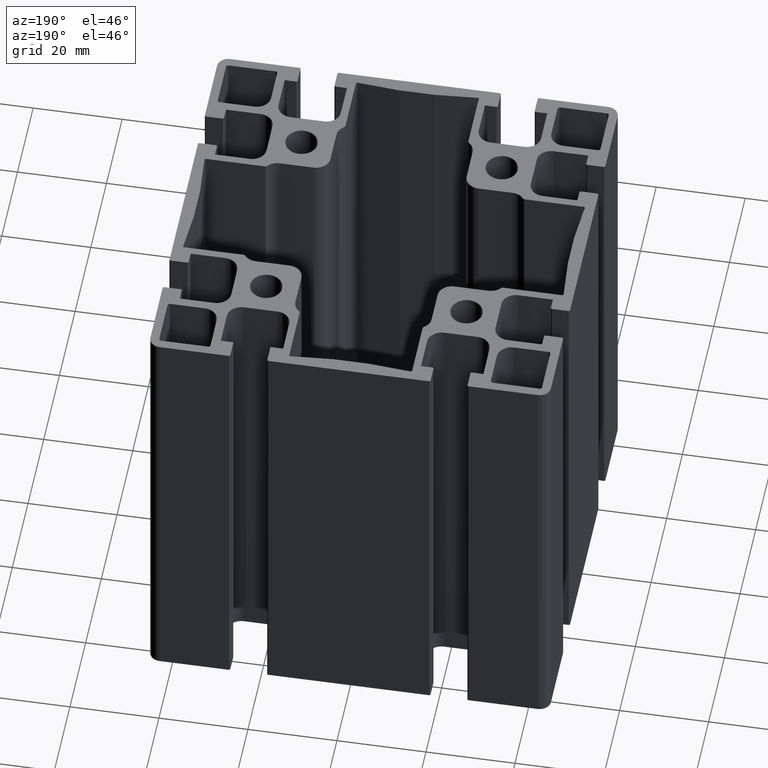
[diagram: clean part render]
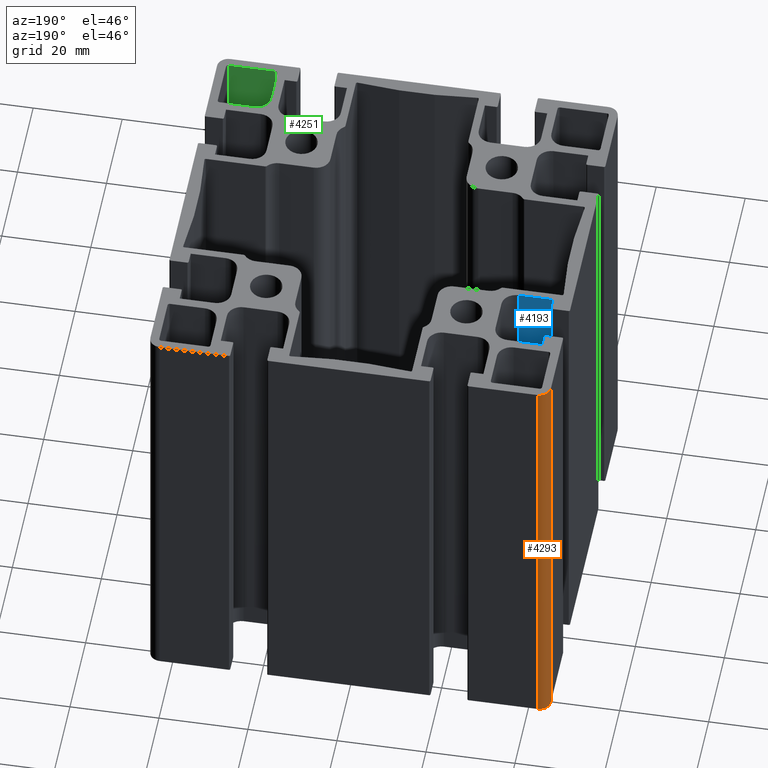
[diagram: same view with three faces highlighted in distinct colors, each labeled with its STEP entity id]
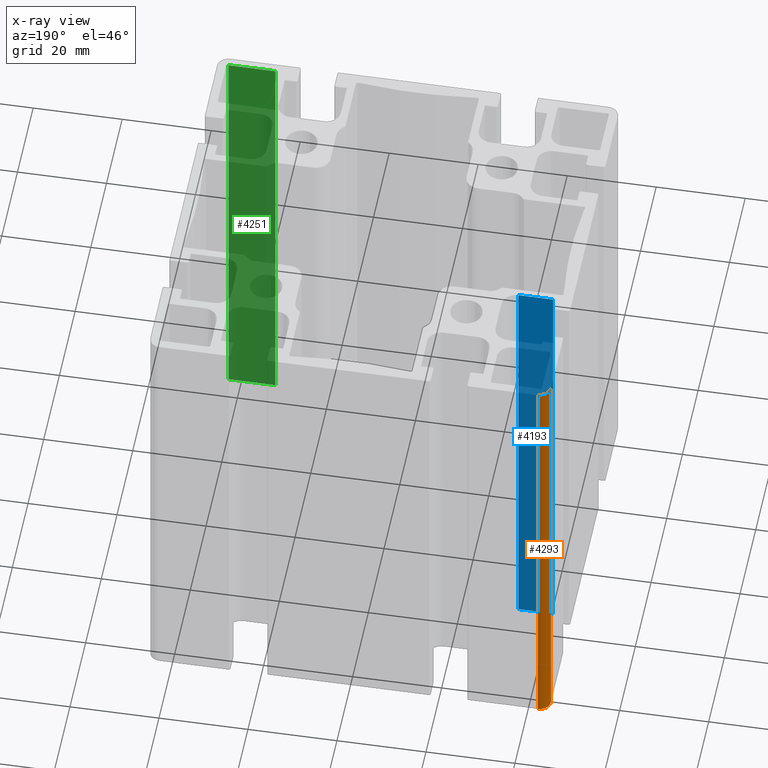
[diagram: x-ray of the same camera — body ghosted, the three highlighted faces saturated]
A machine part, auxiliary view with three faces highlighted in distinct colors.
The next image is the same camera in x-ray (body ghosted, the three faces saturated) — at least one of them is partly hidden behind the body in this view.
Their STEP definitions:

[orange] entity #4293 — the highlighted cylindrical surface (edge-blend (fillet) strip) has radius 2.5 mm, axis along (0, 0, 1).
#230=CIRCLE('',#4700,2.50000000000001);
#234=CIRCLE('',#4707,2.50000000000001);
#334=CYLINDRICAL_SURFACE('',#4706,2.50000000000001);
#545=FACE_OUTER_BOUND('',#772,.T.);
#772=EDGE_LOOP('',(#3739,#3740,#3741,#3742));
#1196=LINE('',#7193,#1628);
#1214=LINE('',#7233,#1646);
#1628=VECTOR('',#5910,100.);
#1646=VECTOR('',#5954,100.);
#2063=VERTEX_POINT('',#7190);
#2064=VERTEX_POINT('',#7192);
#2070=VERTEX_POINT('',#7220);
#2073=VERTEX_POINT('',#7232);
#2676=EDGE_CURVE('',#2063,#2064,#1196,.T.);
#2692=EDGE_CURVE('',#2070,#2064,#230,.T.);
#2699=EDGE_CURVE('',#2073,#2070,#1214,.T.);
#2701=EDGE_CURVE('',#2073,#2063,#234,.T.);
#3739=ORIENTED_EDGE('',*,*,#2692,.T.);
#3740=ORIENTED_EDGE('',*,*,#2676,.F.);
#3741=ORIENTED_EDGE('',*,*,#2701,.F.);
#3742=ORIENTED_EDGE('',*,*,#2699,.T.);
#4293=ADVANCED_FACE('',(#545),#334,.T.);
#4700=AXIS2_PLACEMENT_3D('',#7221,#5939,#5940);
#4706=AXIS2_PLACEMENT_3D('',#7235,#5956,#5957);
#4707=AXIS2_PLACEMENT_3D('',#7236,#5958,#5959);
#5910=DIRECTION('',(0.,0.,1.));
#5939=DIRECTION('center_axis',(0.,0.,-1.));
#5940=DIRECTION('ref_axis',(0.,-1.,0.));
#5954=DIRECTION('',(0.,0.,1.));
#5956=DIRECTION('center_axis',(0.,0.,1.));
#5957=DIRECTION('ref_axis',(0.,-1.,0.));
#5958=DIRECTION('center_axis',(0.,0.,-1.));
#5959=DIRECTION('ref_axis',(0.,-1.,0.));
#7190=CARTESIAN_POINT('',(-42.5,45.,0.));
#7192=CARTESIAN_POINT('',(-42.5,45.,100.));
#7193=CARTESIAN_POINT('',(-42.5,45.,0.));
#7220=CARTESIAN_POINT('',(-45.,42.5,100.));
#7221=CARTESIAN_POINT('Origin',(-42.5,42.5,100.));
#7232=CARTESIAN_POINT('',(-45.,42.5,0.));
#7233=CARTESIAN_POINT('',(-45.,42.5,0.));
#7235=CARTESIAN_POINT('Origin',(-42.5,42.5,0.));
#7236=CARTESIAN_POINT('Origin',(-42.5,42.5,0.));

[blue] entity #4193 — the highlighted planar face has unit normal (0, -1, 0).
#445=FACE_OUTER_BOUND('',#659,.T.);
#659=EDGE_LOOP('',(#3139,#3140,#3141,#3142));
#1011=LINE('',#6641,#1443);
#1012=LINE('',#6643,#1444);
#1013=LINE('',#6645,#1445);
#1014=LINE('',#6646,#1446);
#1443=VECTOR('',#5367,7.8);
#1444=VECTOR('',#5368,100.);
#1445=VECTOR('',#5369,7.8);
#1446=VECTOR('',#5370,100.);
#1875=VERTEX_POINT('',#6639);
#1876=VERTEX_POINT('',#6640);
#1877=VERTEX_POINT('',#6642);
#1878=VERTEX_POINT('',#6644);
#2403=EDGE_CURVE('',#1875,#1876,#1011,.T.);
#2404=EDGE_CURVE('',#1877,#1875,#1012,.T.);
#2405=EDGE_CURVE('',#1878,#1877,#1013,.T.);
#2406=EDGE_CURVE('',#1878,#1876,#1014,.T.);
#3139=ORIENTED_EDGE('',*,*,#2403,.F.);
#3140=ORIENTED_EDGE('',*,*,#2404,.F.);
#3141=ORIENTED_EDGE('',*,*,#2405,.F.);
#3142=ORIENTED_EDGE('',*,*,#2406,.T.);
#4027=PLANE('',#4513);
#4193=ADVANCED_FACE('',(#445),#4027,.F.);
#4513=AXIS2_PLACEMENT_3D('',#6638,#5365,#5366);
#5365=DIRECTION('center_axis',(2.84672570416707E-16,-1.,0.));
#5366=DIRECTION('ref_axis',(0.,0.,-1.));
#5367=DIRECTION('',(-1.,-2.84672570416707E-16,0.));
#5368=DIRECTION('',(0.,0.,1.));
#5369=DIRECTION('',(1.,2.84672570416707E-16,0.));
#5370=DIRECTION('',(0.,0.,1.));
#6638=CARTESIAN_POINT('Origin',(-32.9,15.5,0.));
#6639=CARTESIAN_POINT('',(-32.9,15.5,100.));
#6640=CARTESIAN_POINT('',(-40.7,15.5,100.));
#6641=CARTESIAN_POINT('',(-16.45,15.5,100.));
#6642=CARTESIAN_POINT('',(-32.9,15.5,0.));
#6643=CARTESIAN_POINT('',(-32.9,15.5,0.));
#6644=CARTESIAN_POINT('',(-40.7,15.5,0.));
#6645=CARTESIAN_POINT('',(-16.45,15.5,0.));
#6646=CARTESIAN_POINT('',(-40.7,15.5,0.));

[green] entity #4251 — the highlighted planar face has unit normal (-0, -1, 0).
#503=FACE_OUTER_BOUND('',#721,.T.);
#721=EDGE_LOOP('',(#3363,#3364,#3365,#3366));
#1127=LINE('',#6996,#1559);
#1128=LINE('',#6999,#1560);
#1129=LINE('',#7001,#1561);
#1130=LINE('',#7002,#1562);
#1559=VECTOR('',#5713,100.);
#1560=VECTOR('',#5716,10.5);
#1561=VECTOR('',#5717,10.5);
#1562=VECTOR('',#5718,100.);
#1999=VERTEX_POINT('',#6992);
#2000=VERTEX_POINT('',#6994);
#2001=VERTEX_POINT('',#6998);
#2002=VERTEX_POINT('',#7000);
#2577=EDGE_CURVE('',#2000,#1999,#1127,.T.);
#2578=EDGE_CURVE('',#1999,#2001,#1128,.T.);
#2579=EDGE_CURVE('',#2002,#2000,#1129,.T.);
#2580=EDGE_CURVE('',#2002,#2001,#1130,.T.);
#3363=ORIENTED_EDGE('',*,*,#2578,.F.);
#3364=ORIENTED_EDGE('',*,*,#2577,.F.);
#3365=ORIENTED_EDGE('',*,*,#2579,.F.);
#3366=ORIENTED_EDGE('',*,*,#2580,.T.);
#4056=PLANE('',#4629);
#4251=ADVANCED_FACE('',(#503),#4056,.F.);
#4629=AXIS2_PLACEMENT_3D('',#6997,#5714,#5715);
#5713=DIRECTION('',(0.,0.,1.));
#5714=DIRECTION('center_axis',(-8.45884209238215E-16,-1.,0.));
#5715=DIRECTION('ref_axis',(0.,0.,-1.));
#5716=DIRECTION('',(-1.,8.45884209238215E-16,0.));
#5717=DIRECTION('',(1.,-8.45884209238215E-16,0.));
#5718=DIRECTION('',(0.,0.,1.));
#6992=CARTESIAN_POINT('',(42.5,-43.,100.));
#6994=CARTESIAN_POINT('',(42.5,-43.,0.));
#6996=CARTESIAN_POINT('',(42.5,-43.,0.));
#6997=CARTESIAN_POINT('Origin',(42.5,-43.,0.));
#6998=CARTESIAN_POINT('',(32.,-43.,100.));
#6999=CARTESIAN_POINT('',(21.25,-43.,100.));
#7000=CARTESIAN_POINT('',(32.,-43.,0.));
#7001=CARTESIAN_POINT('',(21.25,-43.,0.));
#7002=CARTESIAN_POINT('',(32.,-43.,0.));